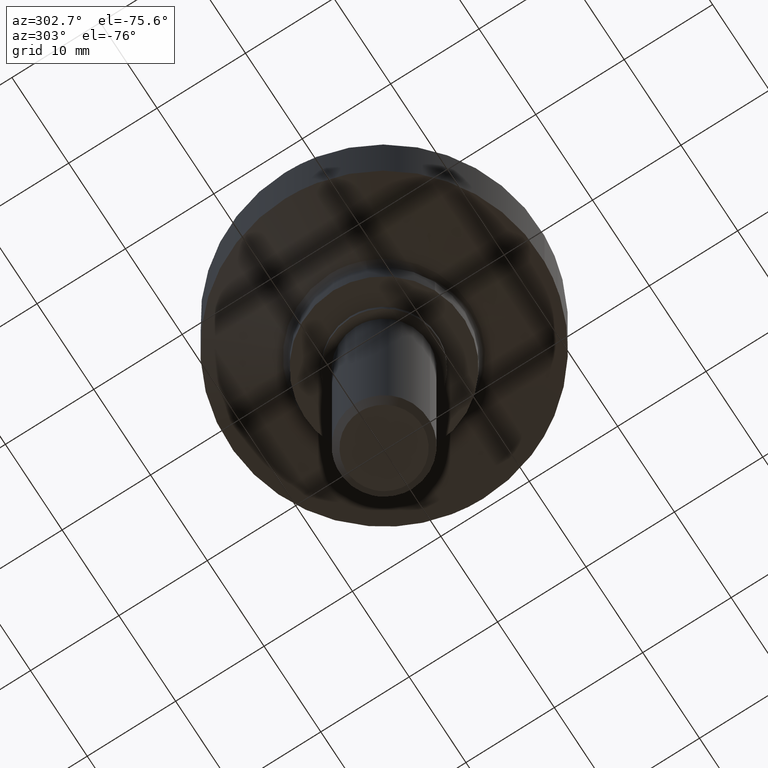
[diagram: clean part render]
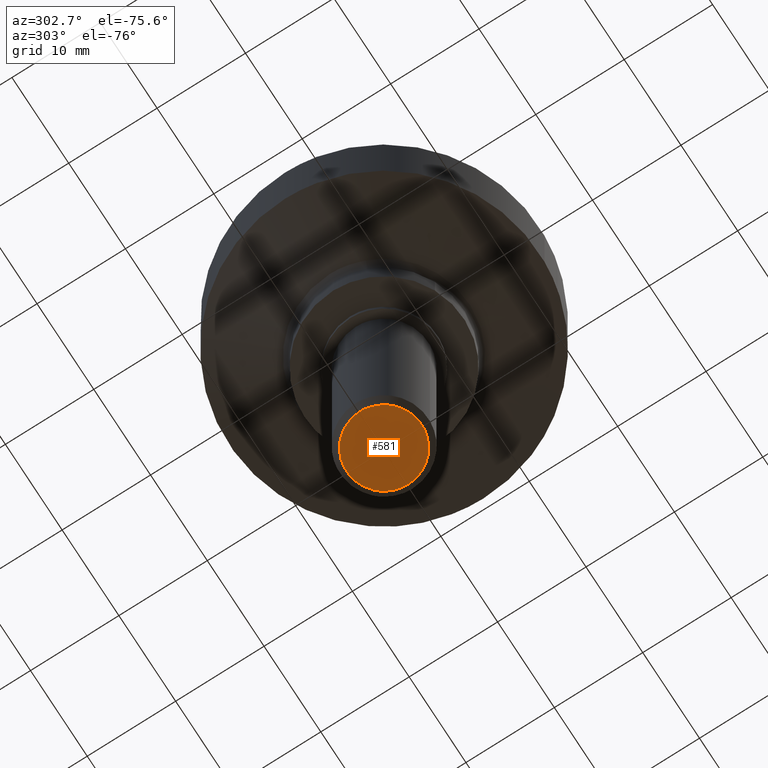
[diagram: same view with one face highlighted and labeled with its STEP entity id]
A machine part, auxiliary view. The second image highlights one B-rep face of the part: STEP entity #581.
In plain terms, the highlighted face is a freeform B-spline surface patch.
Its self-contained STEP definition (entity closure, byte-faithful):
#85=CARTESIAN_POINT('',(3.582920207654463,2.285865872180179,-29.999999999997929));
#86=VERTEX_POINT('',#85);
#92=CARTESIAN_POINT('',(-4.250000000000000,0.0,-30.0));
#93=VERTEX_POINT('',#92);
#94=CARTESIAN_POINT('',(-4.250000000000000,0.0,-30.0));
#95=CARTESIAN_POINT('',(-4.249999999999999,4.249999999999999,-30.000000000000004));
#96=CARTESIAN_POINT('',(0.0,4.250000000000000,-30.0));
#97=CARTESIAN_POINT('',(2.329823038011999,4.250000000000000,-30.0));
#98=CARTESIAN_POINT('',(3.582920207654463,2.285865872180179,-29.999999999997932));
#106=(BOUNDED_CURVE()B_SPLINE_CURVE(2,(#94,#95,#96,#97,#98),.UNSPECIFIED.,.F.,.U.)B_SPLINE_CURVE_WITH_KNOTS((3,2,3),(0.0,0.250000000000000,0.407950112624778),.UNSPECIFIED.)CURVE()GEOMETRIC_REPRESENTATION_ITEM()RATIONAL_B_SPLINE_CURVE((1.0,0.707106781186548,1.0,0.814949932405525,0.863729296953212))REPRESENTATION_ITEM(''));
#107=EDGE_CURVE('',#93,#86,#106,.T.);
#109=CARTESIAN_POINT('',(0.333451157037246,-4.236898668375784,-29.999999999974730));
#110=VERTEX_POINT('',#109);
#111=CARTESIAN_POINT('',(0.333451157037246,-4.236898668375784,-29.999999999974726));
#112=CARTESIAN_POINT('',(0.166982954975415,-4.250000000000000,-30.0));
#113=CARTESIAN_POINT('',(0.0,-4.250000000000000,-30.0));
#114=CARTESIAN_POINT('',(-4.249999999999999,-4.249999999999999,-30.000000000000004));
#115=CARTESIAN_POINT('',(-4.250000000000000,0.0,-30.0));
#123=(BOUNDED_CURVE()B_SPLINE_CURVE(2,(#111,#112,#113,#114,#115),.UNSPECIFIED.,.F.,.U.)B_SPLINE_CURVE_WITH_KNOTS((3,2,3),(0.736331300617236,0.750000000000000,1.0),.UNSPECIFIED.)CURVE()GEOMETRIC_REPRESENTATION_ITEM()RATIONAL_B_SPLINE_CURVE((0.969723356139404,0.983986122563155,1.0,0.707106781186548,1.0))REPRESENTATION_ITEM(''));
#124=EDGE_CURVE('',#110,#93,#123,.T.);
#228=CARTESIAN_POINT('',(4.250000000000000,0.0,-30.0));
#229=VERTEX_POINT('',#228);
#230=CARTESIAN_POINT('',(4.250000000000000,0.0,-30.0));
#231=CARTESIAN_POINT('',(4.250000000000000,-3.928659589190353,-30.0));
#232=CARTESIAN_POINT('',(0.333451157037246,-4.236898668375784,-29.999999999974726));
#240=(BOUNDED_CURVE()B_SPLINE_CURVE(2,(#230,#231,#232),.UNSPECIFIED.,.F.,.U.)B_SPLINE_CURVE_WITH_KNOTS((3,3),(0.500000000000000,0.736331300617236),.UNSPECIFIED.)CURVE()GEOMETRIC_REPRESENTATION_ITEM()RATIONAL_B_SPLINE_CURVE((1.0,0.723120658623392,0.969723356139404))REPRESENTATION_ITEM(''));
#241=EDGE_CURVE('',#229,#110,#240,.T.);
#243=CARTESIAN_POINT('',(3.582920207654463,2.285865872180179,-29.999999999997932));
#244=CARTESIAN_POINT('',(4.250000000000001,1.240269235404038,-29.999999999999996));
#245=CARTESIAN_POINT('',(4.250000000000000,0.0,-30.0));
#253=(BOUNDED_CURVE()B_SPLINE_CURVE(2,(#243,#244,#245),.UNSPECIFIED.,.F.,.U.)B_SPLINE_CURVE_WITH_KNOTS((3,3),(0.407950112624778,0.500000000000000),.UNSPECIFIED.)CURVE()GEOMETRIC_REPRESENTATION_ITEM()RATIONAL_B_SPLINE_CURVE((0.863729296953212,0.892156848781022,1.0))REPRESENTATION_ITEM(''));
#254=EDGE_CURVE('',#86,#229,#253,.T.);
#570=CARTESIAN_POINT('',(-4.674574983525350,-4.673261934544362,-30.0));
#571=CARTESIAN_POINT('',(4.674575211513117,-4.673261934544362,-30.0));
#572=CARTESIAN_POINT('',(-4.674574983525350,4.672941535736836,-30.0));
#573=CARTESIAN_POINT('',(4.674575211513117,4.672941535736836,-30.0));
#574=B_SPLINE_SURFACE_WITH_KNOTS('',1,1,((#570,#572),(#571,#573)),.UNSPECIFIED.,.F.,.F.,.U.,(2,2),(2,2),(0.0,9.349150195038467),(0.0,9.346203470281198),.UNSPECIFIED.);
#575=ORIENTED_EDGE('',*,*,#107,.T.);
#576=ORIENTED_EDGE('',*,*,#254,.T.);
#577=ORIENTED_EDGE('',*,*,#241,.T.);
#578=ORIENTED_EDGE('',*,*,#124,.T.);
#579=EDGE_LOOP('',(#575,#576,#577,#578));
#580=FACE_OUTER_BOUND('',#579,.T.);
#581=ADVANCED_FACE('',(#580),#574,.F.);